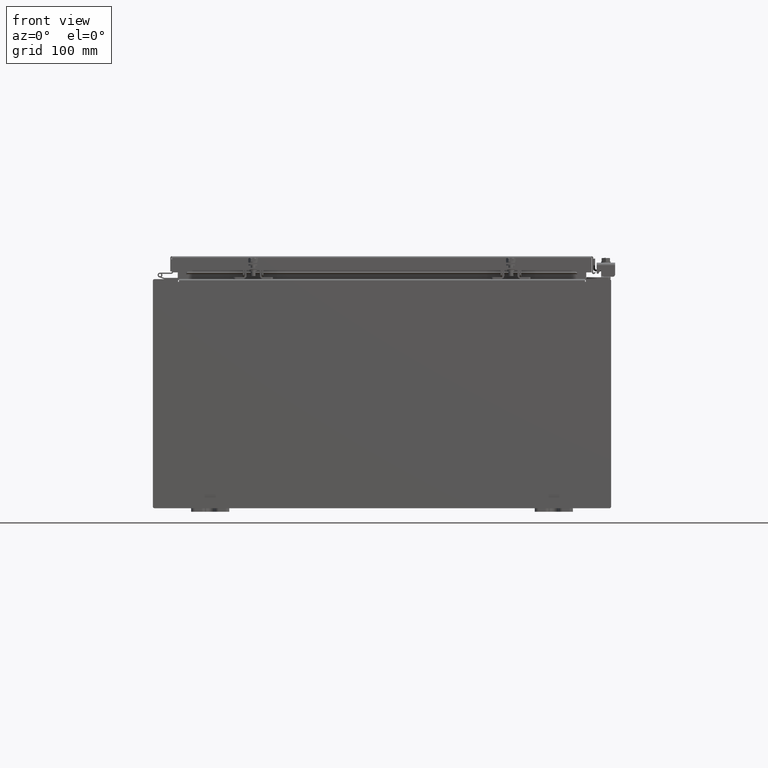
[diagram: clean part render]
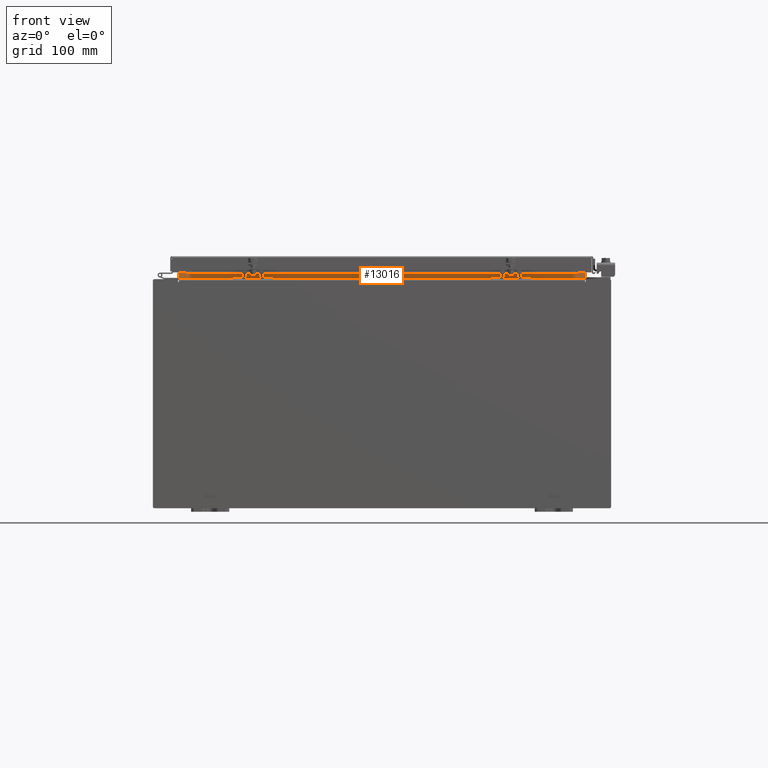
[diagram: same view with one face highlighted and labeled with its STEP entity id]
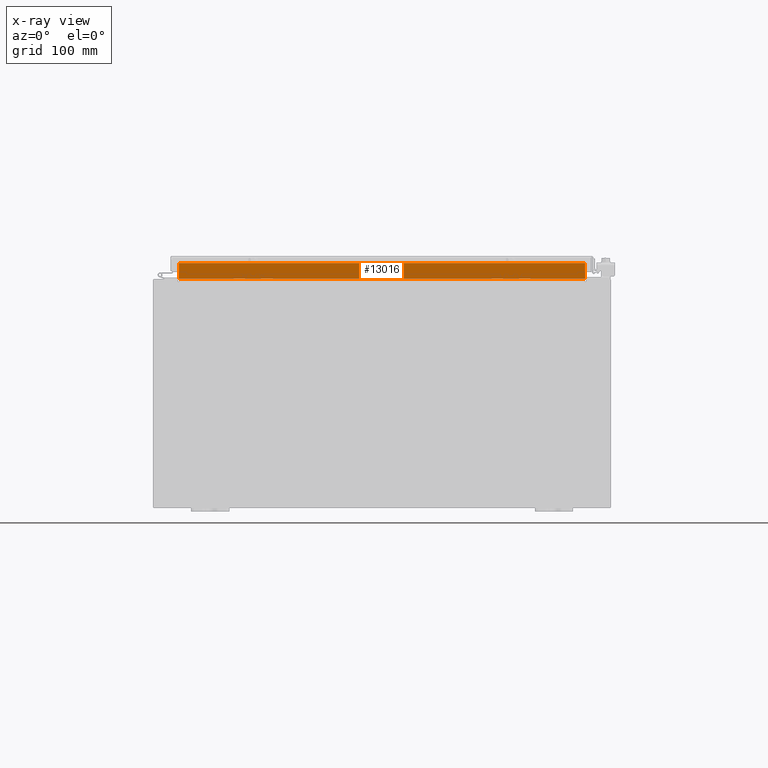
[diagram: x-ray of the same camera — body ghosted, the highlighted face saturated]
A machine part, front view. The second image highlights one B-rep face of the part: STEP entity #13016.
The next image is the same camera in x-ray: the body ghosted, the highlighted face saturated — about 0% of this face is hidden behind the body in this view.
In plain terms, the highlighted planar face has unit normal (0, -1, 0).
Its self-contained STEP definition (entity closure, byte-faithful):
#1125 = DIRECTION ( 'NONE',  ( -0.0000000000000000000, -8.857174949738224200E-016, 1.000000000000000000 ) ) ;
#1791 = VERTEX_POINT ( 'NONE', #12803 ) ;
#2361 = VECTOR ( 'NONE', #9363, 39.37007874015748100 ) ;
#3459 = CARTESIAN_POINT ( 'NONE',  ( 10.63720000000000200, -1.300300000000000700, 6.925300000000007100 ) ) ;
#3930 = VERTEX_POINT ( 'NONE', #17330 ) ;
#4181 = CARTESIAN_POINT ( 'NONE',  ( 1.183117784283575500E-031, -1.300299999999994700, -1.151698458714456500E-015 ) ) ;
#6300 = VERTEX_POINT ( 'NONE', #31960 ) ;
#6544 = PLANE ( 'NONE',  #13425 ) ;
#9140 = DIRECTION ( 'NONE',  ( 0.0000000000000000000, -8.857174949738224200E-016, 1.000000000000000000 ) ) ;
#9363 = DIRECTION ( 'NONE',  ( -1.000000000000000000, -0.0000000000000000000, -0.0000000000000000000 ) ) ;
#9503 = DIRECTION ( 'NONE',  ( -0.0000000000000000000, 8.857174949738214300E-016, -1.000000000000000000 ) ) ;
#12448 = EDGE_CURVE ( 'NONE', #3930, #30547, #15055, .T. ) ;
#12803 = CARTESIAN_POINT ( 'NONE',  ( 10.63720000000000200, -1.300300000000000700, 6.837600000000007200 ) ) ;
#12828 = EDGE_CURVE ( 'NONE', #6300, #1791, #13858, .T. ) ;
#12839 = EDGE_LOOP ( 'NONE', ( #16385, #18291, #31877, #23787 ) ) ;
#13016 = ADVANCED_FACE ( 'NONE', ( #16618 ), #6544, .T. ) ;
#13425 = AXIS2_PLACEMENT_3D ( 'NONE', #4181, #24201, #9140 ) ;
#13858 = LINE ( 'NONE', #3459, #27322 ) ;
#14286 = VECTOR ( 'NONE', #9503, 39.37007874015748100 ) ;
#15055 = LINE ( 'NONE', #16963, #14286 ) ;
#16385 = ORIENTED_EDGE ( 'NONE', *, *, #12448, .F. ) ;
#16618 = FACE_OUTER_BOUND ( 'NONE', #12839, .T. ) ;
#16826 = CARTESIAN_POINT ( 'NONE',  ( -10.63720000000000200, -1.300299999999999800, 6.013000000000003500 ) ) ;
#16963 = CARTESIAN_POINT ( 'NONE',  ( -10.63720000000000200, -1.300299999999999800, 6.000000000000003600 ) ) ;
#17330 = CARTESIAN_POINT ( 'NONE',  ( -10.63719999999998800, -1.300300000000000900, 6.837600000000007200 ) ) ;
#18291 = ORIENTED_EDGE ( 'NONE', *, *, #25796, .F. ) ;
#19244 = CARTESIAN_POINT ( 'NONE',  ( 10.63719999999999600, -1.300300000000000900, 6.837600000000007200 ) ) ;
#20307 = CARTESIAN_POINT ( 'NONE',  ( -10.63720000000000400, -1.300299999999999800, 6.013000000000005200 ) ) ;
#22234 = LINE ( 'NONE', #19244, #2361 ) ;
#23587 = VECTOR ( 'NONE', #27013, 39.37007874015748100 ) ;
#23787 = ORIENTED_EDGE ( 'NONE', *, *, #29921, .F. ) ;
#24201 = DIRECTION ( 'NONE',  ( -9.098806308417904000E-032, 1.000000000000000000, 8.857174949738224200E-016 ) ) ;
#25796 = EDGE_CURVE ( 'NONE', #1791, #3930, #22234, .T. ) ;
#27013 = DIRECTION ( 'NONE',  ( 1.000000000000000000, 1.027280861002618300E-016, 1.027280861002618300E-016 ) ) ;
#27322 = VECTOR ( 'NONE', #1125, 39.37007874015748100 ) ;
#29921 = EDGE_CURVE ( 'NONE', #30547, #6300, #31171, .T. ) ;
#30547 = VERTEX_POINT ( 'NONE', #20307 ) ;
#31171 = LINE ( 'NONE', #16826, #23587 ) ;
#31877 = ORIENTED_EDGE ( 'NONE', *, *, #12828, .F. ) ;
#31960 = CARTESIAN_POINT ( 'NONE',  ( 10.63720000000000400, -1.300299999999999800, 6.013000000000005200 ) ) ;